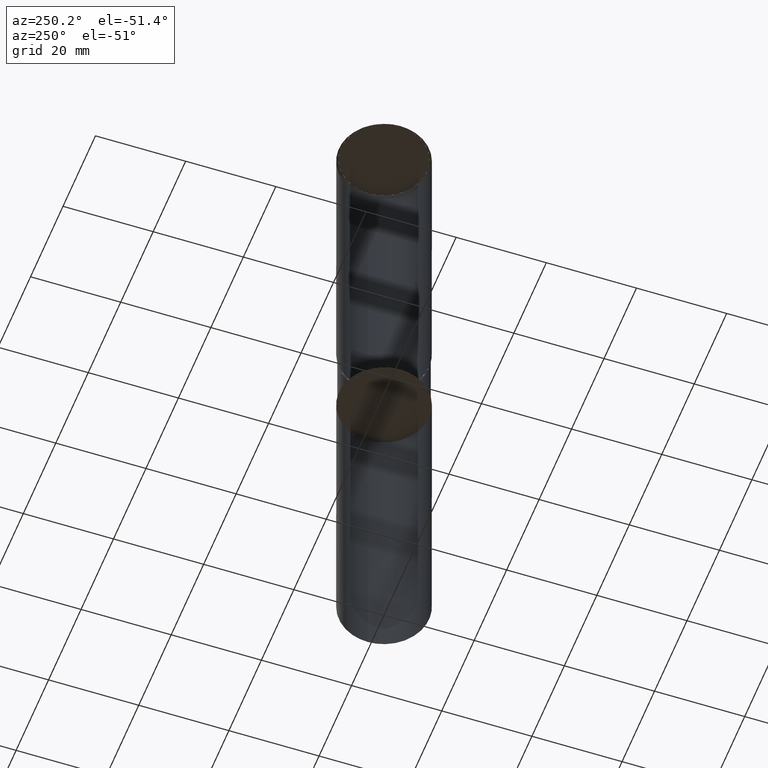
[diagram: clean part render]
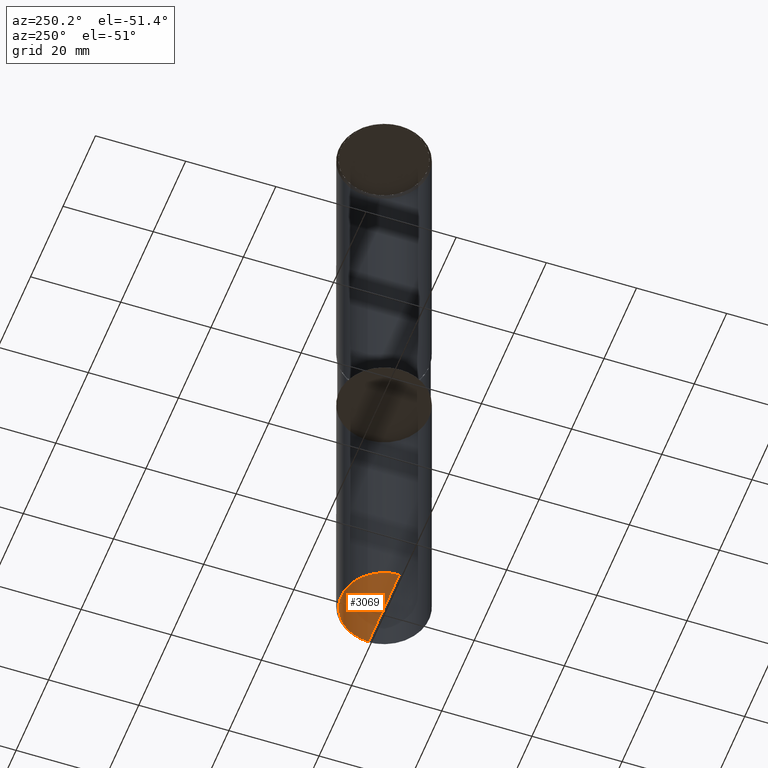
[diagram: same view with one face highlighted and labeled with its STEP entity id]
A machine part, auxiliary view. The second image highlights one B-rep face of the part: STEP entity #3069.
In plain terms, the highlighted face is a freeform B-spline surface patch.
Its self-contained STEP definition (entity closure, byte-faithful):
#2980=CARTESIAN_POINT('',(0.0,0.0,-84.93300989));
#2981=CARTESIAN_POINT('',(9.5,0.0,-84.93300989));
#2982=CARTESIAN_POINT('',(9.5,9.5,-84.93300989));
#2983=CARTESIAN_POINT('',(0.0,9.5,-84.93300989));
#2984=CARTESIAN_POINT('',(-9.5,9.5,-84.93300989));
#2985=CARTESIAN_POINT('',(-9.5,0.0,-84.93300989));
#3054=(
BOUNDED_SURFACE()
B_SPLINE_SURFACE(1,2,(
(#2980,#2980,#2980,#2980,#2980),
(#2981,#2982,#2983,#2984,#2985)
), .UNSPECIFIED.,.F.,.F.,.F.)
B_SPLINE_SURFACE_WITH_KNOTS((2,2),(3,2,3),(
0.0,1.0),(
0.0,0.5,1.0), .UNSPECIFIED.)
GEOMETRIC_REPRESENTATION_ITEM()
RATIONAL_B_SPLINE_SURFACE(((1.0,0.707106781187,1.0,0.707106781187,1.0),
(1.0,0.707106781187,1.0,0.707106781187,1.0)
))
REPRESENTATION_ITEM('')
SURFACE()
);
#3055=(
BOUNDED_CURVE()
B_SPLINE_CURVE(2,(#2981,#2982,#2983,#2984,#2985),.UNSPECIFIED.,.F.,.F.)
B_SPLINE_CURVE_WITH_KNOTS((3,2,3),
(0.0,0.5,1.0),.UNSPECIFIED.)
CURVE()
GEOMETRIC_REPRESENTATION_ITEM()
RATIONAL_B_SPLINE_CURVE((1.0,0.707106781187,1.0,0.707106781187,1.0))
REPRESENTATION_ITEM('')
);
#3056=(
BOUNDED_CURVE()
B_SPLINE_CURVE(1,(#2985,#2980),.UNSPECIFIED.,.F.,.F.)
B_SPLINE_CURVE_WITH_KNOTS((2,2),
(0.0,1.0),.UNSPECIFIED.)
CURVE()
GEOMETRIC_REPRESENTATION_ITEM()
RATIONAL_B_SPLINE_CURVE((1.0,1.0))
REPRESENTATION_ITEM('')
);
#3057=(
BOUNDED_CURVE()
B_SPLINE_CURVE(1,(#2980,#2981),.UNSPECIFIED.,.F.,.F.)
B_SPLINE_CURVE_WITH_KNOTS((2,2),
(0.0,1.0),.UNSPECIFIED.)
CURVE()
GEOMETRIC_REPRESENTATION_ITEM()
RATIONAL_B_SPLINE_CURVE((1.0,1.0))
REPRESENTATION_ITEM('')
);
#3058=VERTEX_POINT('',#2980);
#3059=VERTEX_POINT('',#2981);
#3060=VERTEX_POINT('',#2985);
#3061=EDGE_CURVE('',#3059,#3060,#3055,.T.);
#3062=EDGE_CURVE('',#3060,#3058,#3056,.T.);
#3063=EDGE_CURVE('',#3058,#3059,#3057,.T.);
#3064=ORIENTED_EDGE('',*,*,#3061,.T.);
#3065=ORIENTED_EDGE('',*,*,#3062,.T.);
#3066=ORIENTED_EDGE('',*,*,#3063,.T.);
#3067=EDGE_LOOP('',(#3064,#3065,#3066));
#3068=FACE_OUTER_BOUND('',#3067,.T.);
#3069=ADVANCED_FACE('',(#3068),#3054,.T.);